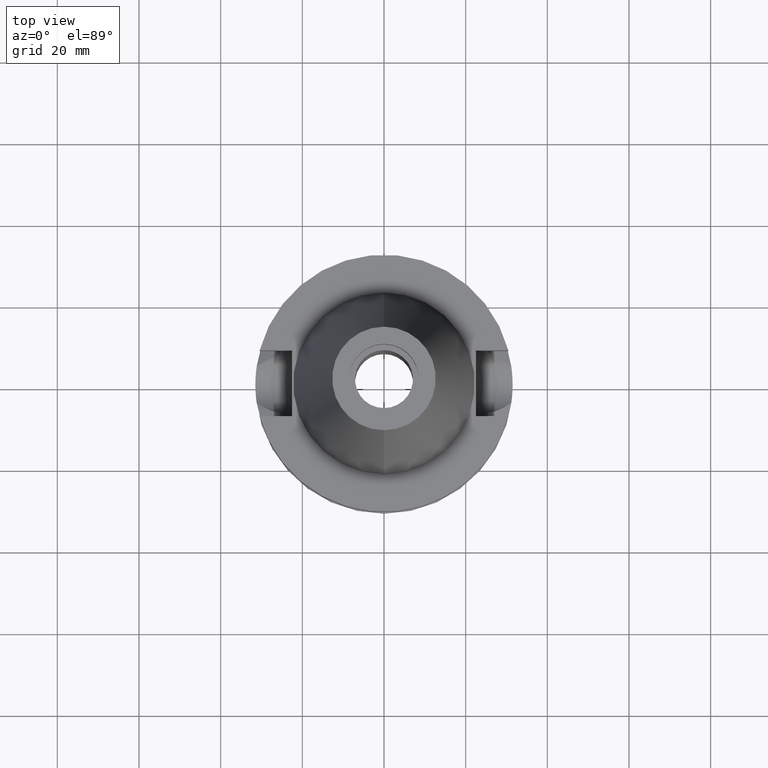
[diagram: clean part render]
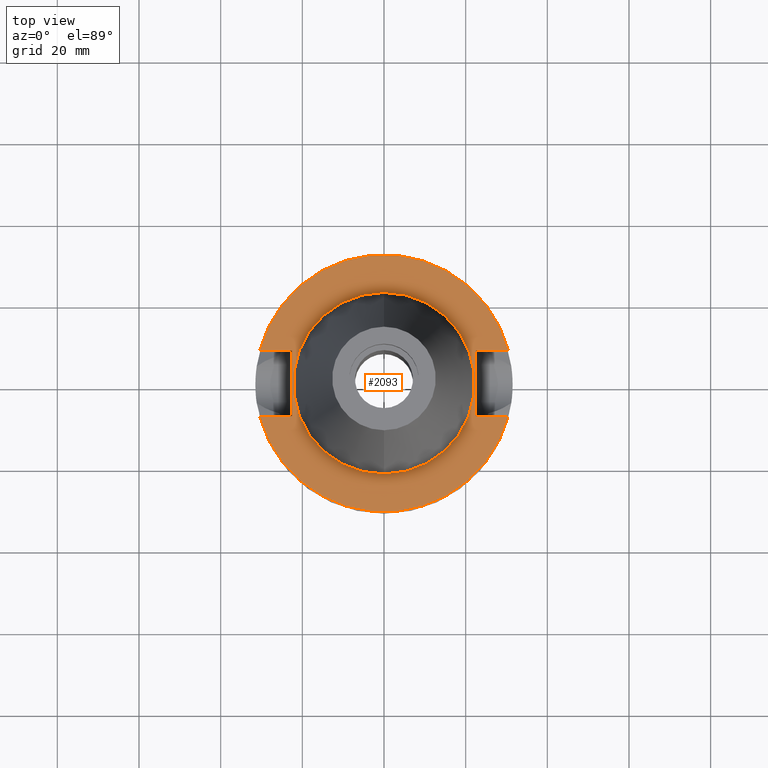
[diagram: same view with one face highlighted and labeled with its STEP entity id]
A machine part, top view. The second image highlights one B-rep face of the part: STEP entity #2093.
In plain terms, the highlighted planar face has unit normal (0, 0, -1).
Its self-contained STEP definition (entity closure, byte-faithful):
#3 = ORIENTED_EDGE ( 'NONE', *, *, #2688, .F. ) ;
#60 = DIRECTION ( 'NONE',  ( 0.0000000000000000000, -1.000000000000000000, 0.0000000000000000000 ) ) ;
#101 = VERTEX_POINT ( 'NONE', #2621 ) ;
#142 = CARTESIAN_POINT ( 'NONE',  ( 22.50000000000000000, -8.050000000000000711, -2.000000000000000000 ) ) ;
#190 = DIRECTION ( 'NONE',  ( 0.0000000000000000000, 0.0000000000000000000, 1.000000000000000000 ) ) ;
#215 = CARTESIAN_POINT ( 'NONE',  ( -22.50000000000000000, 8.050000000000000711, -2.000000000000000000 ) ) ;
#231 = DIRECTION ( 'NONE',  ( -1.000000000000000000, -3.550916904668000126E-14, 0.0000000000000000000 ) ) ;
#244 = EDGE_CURVE ( 'NONE', #1315, #2091, #1578, .T. ) ;
#298 = EDGE_CURVE ( 'NONE', #101, #673, #2671, .T. ) ;
#311 = CARTESIAN_POINT ( 'NONE',  ( -22.50000000000000000, -8.050000000000000711, -2.000000000000000000 ) ) ;
#384 = ORIENTED_EDGE ( 'NONE', *, *, #2510, .F. ) ;
#387 = CARTESIAN_POINT ( 'NONE',  ( -30.45402272279000044, -8.050000000000000711, -2.000000000000000000 ) ) ;
#424 = ORIENTED_EDGE ( 'NONE', *, *, #990, .F. ) ;
#427 = AXIS2_PLACEMENT_3D ( 'NONE', #3206, #190, #3474 ) ;
#472 = CARTESIAN_POINT ( 'NONE',  ( 0.0000000000000000000, 2.115822274886999895E-14, -2.000000000000000000 ) ) ;
#478 = DIRECTION ( 'NONE',  ( 0.0000000000000000000, -1.000000000000000000, 0.0000000000000000000 ) ) ;
#481 = CIRCLE ( 'NONE', #427, 22.22500000000000142 ) ;
#488 = DIRECTION ( 'NONE',  ( 0.0000000000000000000, -1.000000000000000000, 0.0000000000000000000 ) ) ;
#518 = DIRECTION ( 'NONE',  ( 1.000000000000000000, -3.506251283225999947E-14, 0.0000000000000000000 ) ) ;
#590 = LINE ( 'NONE', #633, #3219 ) ;
#600 = CARTESIAN_POINT ( 'NONE',  ( -22.50000000000000000, -8.050000000000000711, -2.000000000000000000 ) ) ;
#633 = CARTESIAN_POINT ( 'NONE',  ( 22.50000000000000000, 8.050000000000000711, -2.000000000000000000 ) ) ;
#639 = DIRECTION ( 'NONE',  ( 0.0000000000000000000, 1.000000000000000000, 0.0000000000000000000 ) ) ;
#673 = VERTEX_POINT ( 'NONE', #1737 ) ;
#678 = CIRCLE ( 'NONE', #1122, 31.50000000000000000 ) ;
#728 = FACE_BOUND ( 'NONE', #2044, .T. ) ;
#732 = CARTESIAN_POINT ( 'NONE',  ( 22.50000000000000000, 8.050000000000000711, -2.000000000000000000 ) ) ;
#743 = DIRECTION ( 'NONE',  ( 0.0000000000000000000, 0.0000000000000000000, -1.000000000000000000 ) ) ;
#772 = DIRECTION ( 'NONE',  ( 0.0000000000000000000, 1.000000000000000000, 0.0000000000000000000 ) ) ;
#868 = EDGE_LOOP ( 'NONE', ( #1765, #424, #1963, #3, #1256, #1975, #3378, #2253 ) ) ;
#871 = LINE ( 'NONE', #600, #2760 ) ;
#935 = CARTESIAN_POINT ( 'NONE',  ( 22.50000000000000000, -8.050000000000000711, -2.000000000000000000 ) ) ;
#962 = EDGE_CURVE ( 'NONE', #673, #2091, #2493, .T. ) ;
#965 = VECTOR ( 'NONE', #2999, 1000.000000000000000 ) ;
#990 = EDGE_CURVE ( 'NONE', #3201, #2882, #678, .T. ) ;
#1051 = CARTESIAN_POINT ( 'NONE',  ( 0.0000000000000000000, 2.115822274886999895E-14, -2.000000000000000000 ) ) ;
#1117 = VECTOR ( 'NONE', #518, 1000.000000000000000 ) ;
#1122 = AXIS2_PLACEMENT_3D ( 'NONE', #1051, #1535, #488 ) ;
#1155 = EDGE_CURVE ( 'NONE', #2052, #1165, #1187, .T. ) ;
#1156 = CARTESIAN_POINT ( 'NONE',  ( 0.0000000000000000000, 2.115822274886999895E-14, -2.000000000000000000 ) ) ;
#1165 = VERTEX_POINT ( 'NONE', #1924 ) ;
#1178 = CARTESIAN_POINT ( 'NONE',  ( 22.50000000000000000, 8.050000000000000711, -2.000000000000000000 ) ) ;
#1187 = CIRCLE ( 'NONE', #2043, 22.22500000000000142 ) ;
#1256 = ORIENTED_EDGE ( 'NONE', *, *, #244, .T. ) ;
#1266 = FACE_OUTER_BOUND ( 'NONE', #868, .T. ) ;
#1315 = VERTEX_POINT ( 'NONE', #1178 ) ;
#1369 = EDGE_CURVE ( 'NONE', #2222, #2882, #1399, .T. ) ;
#1399 = LINE ( 'NONE', #3313, #965 ) ;
#1517 = VECTOR ( 'NONE', #231, 1000.000000000000000 ) ;
#1535 = DIRECTION ( 'NONE',  ( 0.0000000000000000000, 0.0000000000000000000, -1.000000000000000000 ) ) ;
#1578 = LINE ( 'NONE', #732, #1117 ) ;
#1651 = DIRECTION ( 'NONE',  ( 0.0000000000000000000, -1.000000000000000000, 0.0000000000000000000 ) ) ;
#1737 = CARTESIAN_POINT ( 'NONE',  ( -30.45402272279000044, 8.050000000000000711, -2.000000000000000000 ) ) ;
#1752 = AXIS2_PLACEMENT_3D ( 'NONE', #472, #2903, #772 ) ;
#1765 = ORIENTED_EDGE ( 'NONE', *, *, #1369, .T. ) ;
#1788 = EDGE_CURVE ( 'NONE', #3467, #3201, #2800, .T. ) ;
#1789 = CARTESIAN_POINT ( 'NONE',  ( 0.0000000000000000000, -22.22500000000000142, -2.000000000000000000 ) ) ;
#1839 = PLANE ( 'NONE',  #2368 ) ;
#1858 = CARTESIAN_POINT ( 'NONE',  ( 30.45402272279000044, -8.050000000000000711, -2.000000000000000000 ) ) ;
#1924 = CARTESIAN_POINT ( 'NONE',  ( 0.0000000000000000000, 22.22500000000000142, -2.000000000000000000 ) ) ;
#1963 = ORIENTED_EDGE ( 'NONE', *, *, #1788, .F. ) ;
#1975 = ORIENTED_EDGE ( 'NONE', *, *, #962, .F. ) ;
#2043 = AXIS2_PLACEMENT_3D ( 'NONE', #1156, #2736, #1651 ) ;
#2044 = EDGE_LOOP ( 'NONE', ( #384, #3039 ) ) ;
#2052 = VERTEX_POINT ( 'NONE', #1789 ) ;
#2091 = VERTEX_POINT ( 'NONE', #3178 ) ;
#2093 = ADVANCED_FACE ( 'NONE', ( #1266, #728 ), #1839, .F. ) ;
#2125 = CARTESIAN_POINT ( 'NONE',  ( 0.0000000000000000000, 1.200153863163999924E-14, -2.000000000000000000 ) ) ;
#2222 = VERTEX_POINT ( 'NONE', #311 ) ;
#2239 = DIRECTION ( 'NONE',  ( 1.000000000000000000, 3.573249715389999860E-14, 0.0000000000000000000 ) ) ;
#2253 = ORIENTED_EDGE ( 'NONE', *, *, #3034, .F. ) ;
#2368 = AXIS2_PLACEMENT_3D ( 'NONE', #2125, #743, #478 ) ;
#2493 = CIRCLE ( 'NONE', #1752, 31.50000000000000000 ) ;
#2510 = EDGE_CURVE ( 'NONE', #1165, #2052, #481, .T. ) ;
#2621 = CARTESIAN_POINT ( 'NONE',  ( -22.50000000000000000, 8.050000000000000711, -2.000000000000000000 ) ) ;
#2671 = LINE ( 'NONE', #215, #1517 ) ;
#2688 = EDGE_CURVE ( 'NONE', #1315, #3467, #590, .T. ) ;
#2736 = DIRECTION ( 'NONE',  ( 0.0000000000000000000, 0.0000000000000000000, 1.000000000000000000 ) ) ;
#2760 = VECTOR ( 'NONE', #639, 1000.000000000000000 ) ;
#2800 = LINE ( 'NONE', #142, #3510 ) ;
#2882 = VERTEX_POINT ( 'NONE', #387 ) ;
#2903 = DIRECTION ( 'NONE',  ( 0.0000000000000000000, 0.0000000000000000000, -1.000000000000000000 ) ) ;
#2999 = DIRECTION ( 'NONE',  ( -1.000000000000000000, 3.550916904668000126E-14, 0.0000000000000000000 ) ) ;
#3034 = EDGE_CURVE ( 'NONE', #2222, #101, #871, .T. ) ;
#3039 = ORIENTED_EDGE ( 'NONE', *, *, #1155, .F. ) ;
#3178 = CARTESIAN_POINT ( 'NONE',  ( 30.45402272279000044, 8.050000000000000711, -2.000000000000000000 ) ) ;
#3201 = VERTEX_POINT ( 'NONE', #1858 ) ;
#3206 = CARTESIAN_POINT ( 'NONE',  ( 0.0000000000000000000, 2.115822274886999895E-14, -2.000000000000000000 ) ) ;
#3219 = VECTOR ( 'NONE', #60, 1000.000000000000000 ) ;
#3313 = CARTESIAN_POINT ( 'NONE',  ( -22.50000000000000000, -8.050000000000000711, -2.000000000000000000 ) ) ;
#3378 = ORIENTED_EDGE ( 'NONE', *, *, #298, .F. ) ;
#3467 = VERTEX_POINT ( 'NONE', #935 ) ;
#3474 = DIRECTION ( 'NONE',  ( 0.0000000000000000000, 1.000000000000000000, 0.0000000000000000000 ) ) ;
#3510 = VECTOR ( 'NONE', #2239, 1000.000000000000000 ) ;